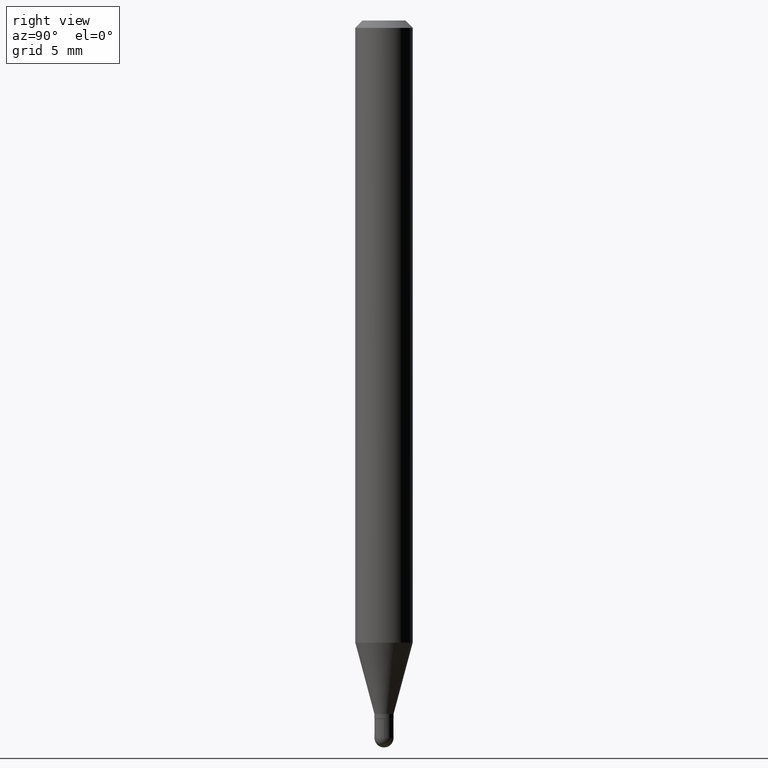
[diagram: clean part render]
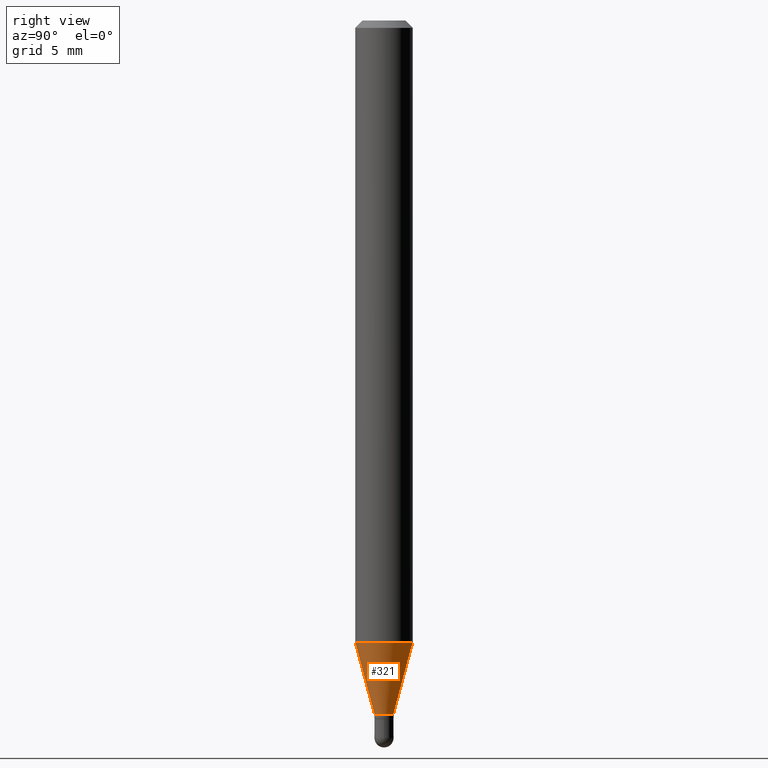
[diagram: same view with one face highlighted and labeled with its STEP entity id]
A machine part, right view. The second image highlights one B-rep face of the part: STEP entity #321.
In plain terms, the highlighted conical surface has half-angle 15 deg.
Its self-contained STEP definition (entity closure, byte-faithful):
#4 = CARTESIAN_POINT ( 'NONE',  ( -1.375643647503839622E-16, -0.01970000000000490109, -1.427099999999999591 ) ) ;
#14 = VECTOR ( 'NONE', #234, 39.37007874015748143 ) ;
#27 = CIRCLE ( 'NONE', #340, 0.01969999999999991896 ) ;
#42 = DIRECTION ( 'NONE',  ( -6.982962677686265922E-15, -1.000000000000000000, 0.000000000000000000 ) ) ;
#45 = CARTESIAN_POINT ( 'NONE',  ( 3.130790046417451577E-29, -4.469956264772435367E-15, -1.280243800722164815 ) ) ;
#64 = VERTEX_POINT ( 'NONE', #138 ) ;
#82 = DIRECTION ( 'NONE',  ( -2.445463937924498510E-29, 3.491488310469463520E-15, 1.000000000000000000 ) ) ;
#101 = CARTESIAN_POINT ( 'NONE',  ( 1.399769189447740433E-16, 0.01969999999999494031, -1.427099999999999591 ) ) ;
#114 = ORIENTED_EDGE ( 'NONE', *, *, #402, .T. ) ;
#119 = ORIENTED_EDGE ( 'NONE', *, *, #248, .F. ) ;
#129 = DIRECTION ( 'NONE',  ( -6.982962677686265922E-15, -1.000000000000000000, 0.000000000000000000 ) ) ;
#130 = DIRECTION ( 'NONE',  ( -6.982962677686265922E-15, -1.000000000000000000, 4.626330217890369336E-15 ) ) ;
#138 = CARTESIAN_POINT ( 'NONE',  ( 4.195754854663702092E-16, 0.05904999999999550886, -1.280243800722165037 ) ) ;
#166 = CARTESIAN_POINT ( 'NONE',  ( -1.375643647503839622E-16, -0.01970000000000490109, -1.427099999999999591 ) ) ;
#185 = CARTESIAN_POINT ( 'NONE',  ( 2.797762022055723851E-16, 0.01969999999999494031, -1.427099999999999591 ) ) ;
#196 = EDGE_LOOP ( 'NONE', ( #427, #114, #291, #119 ) ) ;
#207 = EDGE_CURVE ( 'NONE', #322, #64, #430, .T. ) ;
#234 = DIRECTION ( 'NONE',  ( 1.839019923739602287E-15, 0.2588190451025252359, 0.9659258262890670910 ) ) ;
#237 = AXIS2_PLACEMENT_3D ( 'NONE', #45, #82, #130 ) ;
#248 = EDGE_CURVE ( 'NONE', #476, #322, #335, .T. ) ;
#254 = CARTESIAN_POINT ( 'NONE',  ( 3.489921585812051026E-29, -4.982702967870969874E-15, -1.427099999999999591 ) ) ;
#259 = DIRECTION ( 'NONE',  ( -1.807323732225332111E-15, -0.2588190451025184635, 0.9659258262890689783 ) ) ;
#291 = ORIENTED_EDGE ( 'NONE', *, *, #207, .F. ) ;
#294 = CARTESIAN_POINT ( 'NONE',  ( 3.489921585812051026E-29, -4.982702967870969874E-15, -1.427099999999999591 ) ) ;
#321 = ADVANCED_FACE ( 'NONE', ( #447 ), #507, .T. ) ;
#322 = VERTEX_POINT ( 'NONE', #446 ) ;
#335 = LINE ( 'NONE', #4, #383 ) ;
#340 = AXIS2_PLACEMENT_3D ( 'NONE', #254, #478, #129 ) ;
#383 = VECTOR ( 'NONE', #259, 39.37007874015748854 ) ;
#402 = EDGE_CURVE ( 'NONE', #403, #64, #452, .T. ) ;
#403 = VERTEX_POINT ( 'NONE', #185 ) ;
#406 = DIRECTION ( 'NONE',  ( -2.445463937924498510E-29, 3.491488310469463520E-15, 1.000000000000000000 ) ) ;
#427 = ORIENTED_EDGE ( 'NONE', *, *, #509, .T. ) ;
#430 = CIRCLE ( 'NONE', #237, 0.05904999999999999832 ) ;
#446 = CARTESIAN_POINT ( 'NONE',  ( -4.123439461173428234E-16, -0.05905000000000448779, -1.280243800722164371 ) ) ;
#447 = FACE_OUTER_BOUND ( 'NONE', #196, .T. ) ;
#452 = LINE ( 'NONE', #101, #14 ) ;
#476 = VERTEX_POINT ( 'NONE', #166 ) ;
#478 = DIRECTION ( 'NONE',  ( -2.445463937924498510E-29, 3.491488310469463520E-15, 1.000000000000000000 ) ) ;
#501 = AXIS2_PLACEMENT_3D ( 'NONE', #294, #406, #42 ) ;
#507 = CONICAL_SURFACE ( 'NONE', #501, 0.01969999999999991896, 0.2617993877991505736 ) ;
#509 = EDGE_CURVE ( 'NONE', #476, #403, #27, .T. ) ;